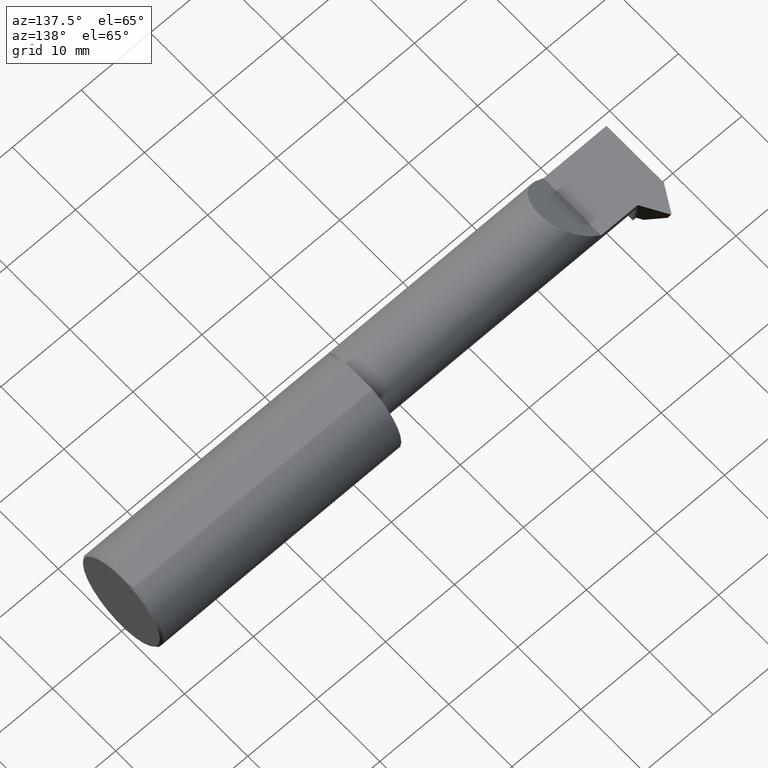
[diagram: clean part render]
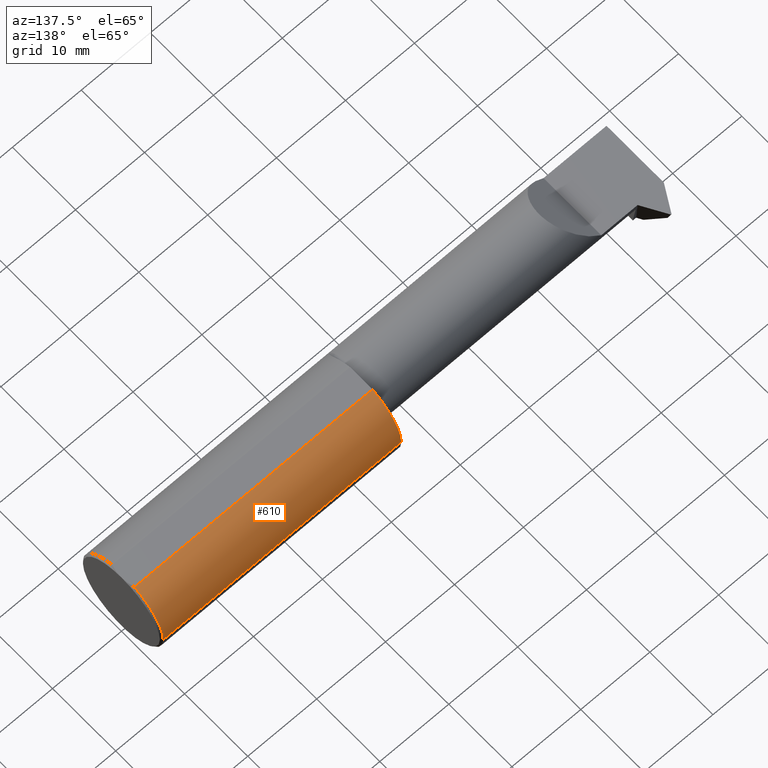
[diagram: same view with one face highlighted and labeled with its STEP entity id]
A machine part, auxiliary view. The second image highlights one B-rep face of the part: STEP entity #610.
In plain terms, the highlighted cylindrical surface (partial cylindrical patch) has radius 6.3462 mm, axis along (1, 0, -0).
Its self-contained STEP definition (entity closure, byte-faithful):
#3 = CIRCLE ( 'NONE', #499, 0.2498499999999999888 ) ;
#17 = VECTOR ( 'NONE', #572, 39.37007874015748143 ) ;
#20 = CARTESIAN_POINT ( 'NONE',  ( -0.009999999999999620304, 0.06997856814768398104, 0.2398500000000000076 ) ) ;
#73 = ORIENTED_EDGE ( 'NONE', *, *, #449, .F. ) ;
#95 = LINE ( 'NONE', #445, #17 ) ;
#100 = VERTEX_POINT ( 'NONE', #20 ) ;
#112 = CARTESIAN_POINT ( 'NONE',  ( -0.009999999999999620304, 4.274017329024257420E-16, 0.000000000000000000 ) ) ;
#122 = CARTESIAN_POINT ( 'NONE',  ( -3.000000000000000444, 0.2498500000000000720, 0.000000000000000000 ) ) ;
#136 = ORIENTED_EDGE ( 'NONE', *, *, #450, .T. ) ;
#172 = CARTESIAN_POINT ( 'NONE',  ( -1.370000000000000329, 0.2498500000000002663, 0.000000000000000000 ) ) ;
#179 = ORIENTED_EDGE ( 'NONE', *, *, #265, .F. ) ;
#182 = EDGE_LOOP ( 'NONE', ( #73, #674, #179, #136 ) ) ;
#225 = DIRECTION ( 'NONE',  ( -1.000000000000000000, -1.224646799147374408E-16, 0.000000000000000000 ) ) ;
#229 = LINE ( 'NONE', #122, #753 ) ;
#245 = FACE_OUTER_BOUND ( 'NONE', #182, .T. ) ;
#265 = EDGE_CURVE ( 'NONE', #100, #561, #95, .T. ) ;
#275 = DIRECTION ( 'NONE',  ( 1.000000000000000000, 1.224646799147351482E-16, -0.000000000000000000 ) ) ;
#281 = CARTESIAN_POINT ( 'NONE',  ( -1.370000000000000329, 2.608497682183858774E-16, 0.000000000000000000 ) ) ;
#308 = CARTESIAN_POINT ( 'NONE',  ( -0.009999999999999649794, 0.2498500000000004329, 0.000000000000000000 ) ) ;
#311 = EDGE_CURVE ( 'NONE', #740, #561, #669, .T. ) ;
#329 = DIRECTION ( 'NONE',  ( 1.000000000000000000, -9.422009876951564852E-18, 0.000000000000000000 ) ) ;
#388 = DIRECTION ( 'NONE',  ( 0.000000000000000000, -1.000000000000000000, 0.000000000000000000 ) ) ;
#435 = AXIS2_PLACEMENT_3D ( 'NONE', #281, #329, #388 ) ;
#445 = CARTESIAN_POINT ( 'NONE',  ( -3.000000000000000444, 0.06997856814768362022, 0.2398500000000000076 ) ) ;
#449 = EDGE_CURVE ( 'NONE', #740, #514, #229, .T. ) ;
#450 = EDGE_CURVE ( 'NONE', #100, #514, #3, .T. ) ;
#499 = AXIS2_PLACEMENT_3D ( 'NONE', #112, #225, #531 ) ;
#514 = VERTEX_POINT ( 'NONE', #308 ) ;
#531 = DIRECTION ( 'NONE',  ( -1.195901037850825602E-16, 1.000000000000000000, -8.881784197001252323E-16 ) ) ;
#541 = CARTESIAN_POINT ( 'NONE',  ( -1.370000000000000329, 0.06997856814768398104, 0.2398500000000000631 ) ) ;
#561 = VERTEX_POINT ( 'NONE', #541 ) ;
#572 = DIRECTION ( 'NONE',  ( -1.000000000000000000, -1.224646799147351482E-16, 0.000000000000000000 ) ) ;
#579 = AXIS2_PLACEMENT_3D ( 'NONE', #635, #275, #638 ) ;
#588 = DIRECTION ( 'NONE',  ( 1.000000000000000000, 1.224646799147351482E-16, -0.000000000000000000 ) ) ;
#605 = CYLINDRICAL_SURFACE ( 'NONE', #579, 0.2498499999999999888 ) ;
#610 = ADVANCED_FACE ( 'NONE', ( #245 ), #605, .T. ) ;
#635 = CARTESIAN_POINT ( 'NONE',  ( -3.000000000000000444, 6.123233995736759873E-17, 0.000000000000000000 ) ) ;
#638 = DIRECTION ( 'NONE',  ( 0.000000000000000000, 1.000000000000000000, 0.000000000000000000 ) ) ;
#669 = CIRCLE ( 'NONE', #435, 0.2498499999999999888 ) ;
#674 = ORIENTED_EDGE ( 'NONE', *, *, #311, .T. ) ;
#740 = VERTEX_POINT ( 'NONE', #172 ) ;
#753 = VECTOR ( 'NONE', #588, 39.37007874015748143 ) ;